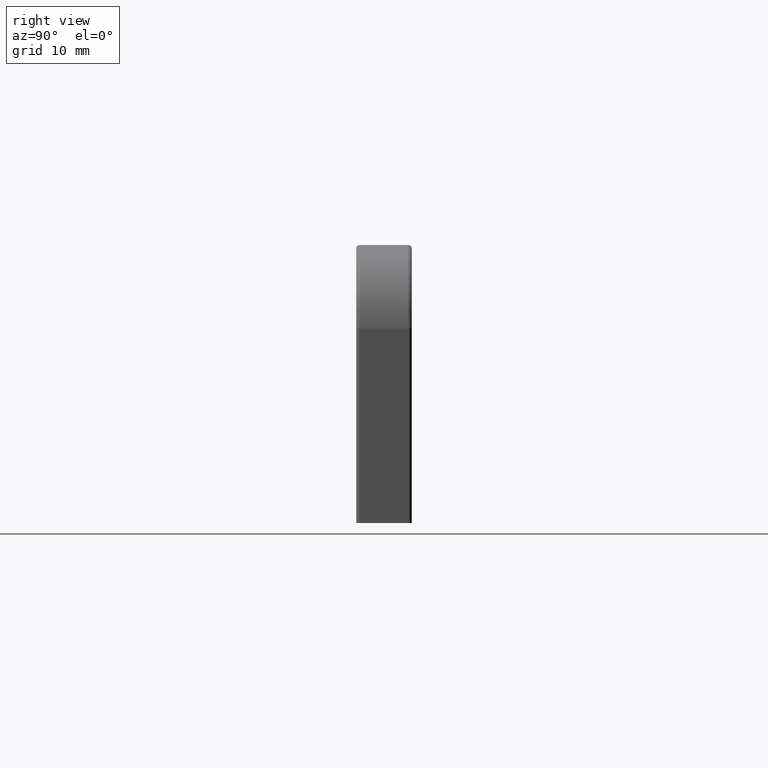
[diagram: clean part render]
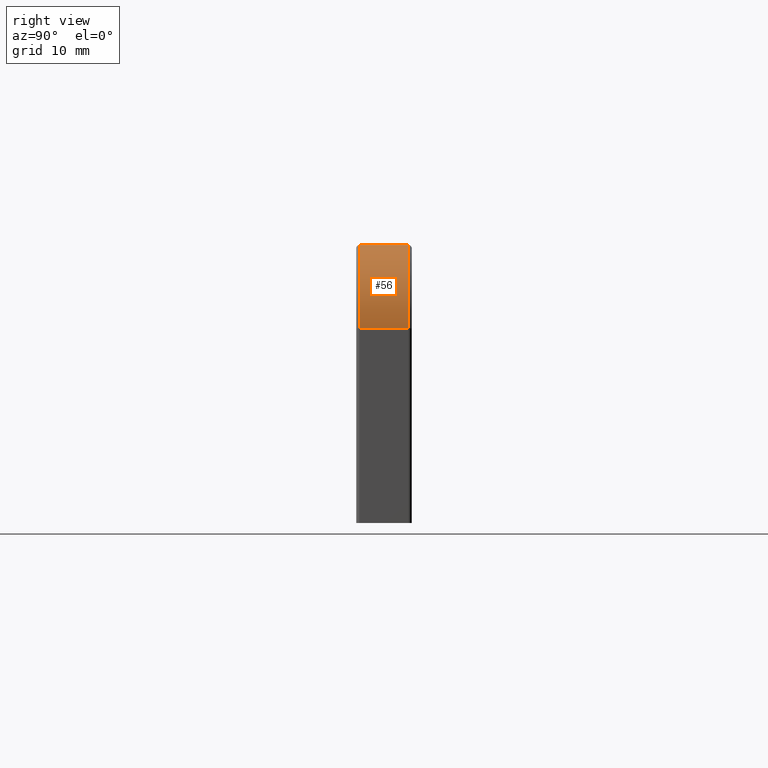
[diagram: same view with one face highlighted and labeled with its STEP entity id]
A machine part, right view. The second image highlights one B-rep face of the part: STEP entity #56.
In plain terms, the highlighted cylindrical surface (partial cylindrical patch) has radius 12 mm, axis along (-0, -1, 0).
Its self-contained STEP definition (entity closure, byte-faithful):
#56=ADVANCED_FACE('',(#241),#240,.T.);
#240=CYLINDRICAL_SURFACE('',#751,1.20000000000E+01);
#241=FACE_OUTER_BOUND('',#752,.T.);
#748=CARTESIAN_POINT('',(3.65000000000E+01,-4.20000000000E+00,2.80000000000E+01));
#749=DIRECTION('',(-0.00000000000E+00,-1.00000000000E+00,0.00000000000E+00));
#750=DIRECTION('',(6.88354575694E-01,-0.00000000000E+00,-7.25374371012E-01));
#751=AXIS2_PLACEMENT_3D('',#748,#749,#750);
#752=EDGE_LOOP('',(#992,#993,#994,#995));
#992=ORIENTED_EDGE('',*,*,#1126,.T.);
#993=ORIENTED_EDGE('',*,*,#1153,.F.);
#994=ORIENTED_EDGE('',*,*,#1123,.F.);
#995=ORIENTED_EDGE('',*,*,#1137,.T.);
#1123=EDGE_CURVE('',#1251,#1237,#1258,.T.);
#1126=EDGE_CURVE('',#1279,#1272,#1280,.T.);
#1137=EDGE_CURVE('',#1251,#1279,#1355,.T.);
#1153=EDGE_CURVE('',#1237,#1272,#1461,.T.);
#1237=VERTEX_POINT('',#1837);
#1251=VERTEX_POINT('',#1847);
#1258=CIRCLE('',#1855,1.20000000000E+01);
#1272=VERTEX_POINT('',#1862);
#1279=VERTEX_POINT('',#1867);
#1280=CIRCLE('',#1871,1.20000000000E+01);
#1355=LINE('',#1920,#1921);
#1461=LINE('',#1986,#1987);
#1837=CARTESIAN_POINT('',(4.85000000000E+01,3.50000000000E+00,2.80000000000E+01));
#1847=CARTESIAN_POINT('',(3.65000000000E+01,3.50000000000E+00,4.00000000000E+01));
#1852=CARTESIAN_POINT('',(3.65000000000E+01,3.50000000000E+00,2.80000000000E+01));
#1853=DIRECTION('',(-0.00000000000E+00,1.00000000000E+00,0.00000000000E+00));
#1854=DIRECTION('',(-5.92118946467E-16,-0.00000000000E+00,-1.00000000000E+00));
#1855=AXIS2_PLACEMENT_3D('',#1852,#1853,#1854);
#1862=CARTESIAN_POINT('',(4.85000000000E+01,-3.50000000000E+00,2.80000000000E+01));
#1867=CARTESIAN_POINT('',(3.65000000000E+01,-3.50000000000E+00,4.00000000000E+01));
#1868=CARTESIAN_POINT('',(3.65000000000E+01,-3.50000000000E+00,2.80000000000E+01));
#1869=DIRECTION('',(-0.00000000000E+00,1.00000000000E+00,0.00000000000E+00));
#1870=DIRECTION('',(-5.92118946467E-16,-0.00000000000E+00,-1.00000000000E+00));
#1871=AXIS2_PLACEMENT_3D('',#1868,#1869,#1870);
#1920=CARTESIAN_POINT('',(3.65000000000E+01,3.50000000000E+00,4.00000000000E+01));
#1921=VECTOR('',#1922,7.00000000000E+00);
#1922=DIRECTION('',(0.00000000000E+00,-1.00000000000E+00,0.00000000000E+00));
#1986=CARTESIAN_POINT('',(4.85000000000E+01,3.50000000000E+00,2.80000000000E+01));
#1987=VECTOR('',#1988,7.00000000000E+00);
#1988=DIRECTION('',(0.00000000000E+00,-1.00000000000E+00,0.00000000000E+00));